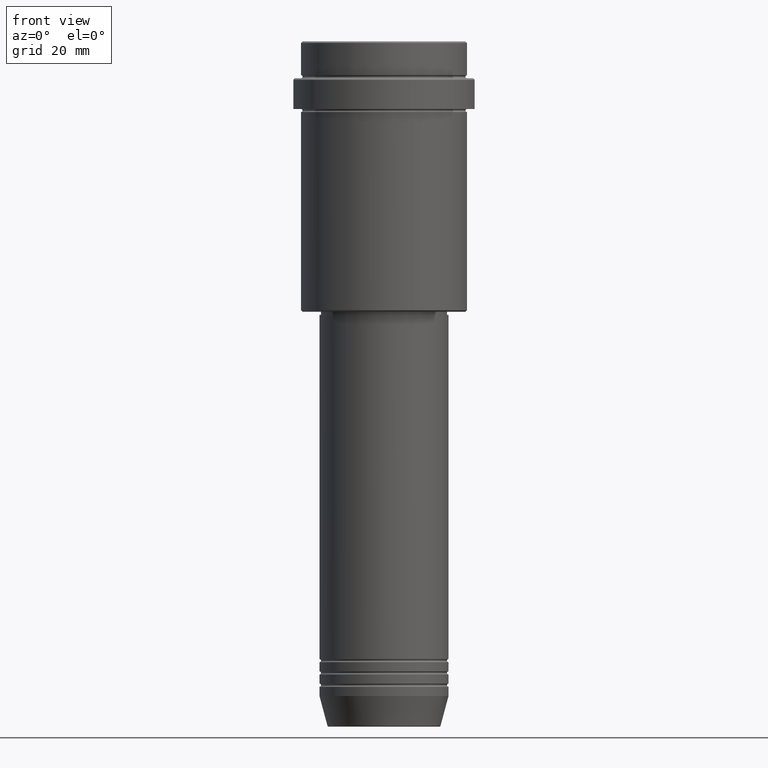
[diagram: clean part render]
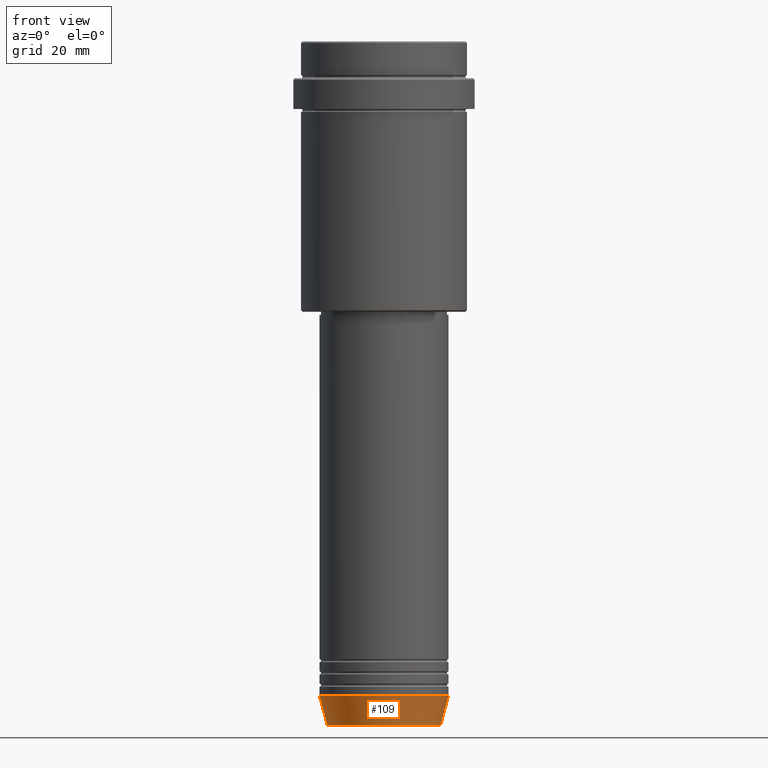
[diagram: same view with one face highlighted and labeled with its STEP entity id]
A machine part, front view. The second image highlights one B-rep face of the part: STEP entity #109.
In plain terms, the highlighted conical surface has half-angle 15 deg.
Its self-contained STEP definition (entity closure, byte-faithful):
#22 = EDGE_CURVE ( 'NONE', #302, #444, #1338, .T. ) ;
#48 = CARTESIAN_POINT ( 'NONE',  ( 0.000000000000000000, 0.000000000000000000, -213.0000000000000284 ) ) ;
#105 = ORIENTED_EDGE ( 'NONE', *, *, #22, .F. ) ;
#108 = ORIENTED_EDGE ( 'NONE', *, *, #338, .T. ) ;
#109 = ADVANCED_FACE ( 'NONE', ( #1351 ), #1205, .T. ) ;
#147 = DIRECTION ( 'NONE',  ( -0.000000000000000000, -0.000000000000000000, 1.000000000000000000 ) ) ;
#176 = CIRCLE ( 'NONE', #1340, 18.41980749484383040 ) ;
#205 = VERTEX_POINT ( 'NONE', #281 ) ;
#249 = DIRECTION ( 'NONE',  ( 0.2588190451025211836, 0.000000000000000000, 0.9659258262890680902 ) ) ;
#252 = CARTESIAN_POINT ( 'NONE',  ( 0.000000000000000000, 0.000000000000000000, -222.6294095225512990 ) ) ;
#281 = CARTESIAN_POINT ( 'NONE',  ( -18.41980749484383040, 2.413767053578267064E-15, -222.6294095225512990 ) ) ;
#294 = ORIENTED_EDGE ( 'NONE', *, *, #1155, .F. ) ;
#302 = VERTEX_POINT ( 'NONE', #359 ) ;
#316 = CARTESIAN_POINT ( 'NONE',  ( 21.00000000000000000, 0.000000000000000000, -213.0000000000000284 ) ) ;
#338 = EDGE_CURVE ( 'NONE', #205, #1068, #176, .T. ) ;
#359 = CARTESIAN_POINT ( 'NONE',  ( -21.00000000000000000, 2.571758278209441661E-15, -213.0000000000000284 ) ) ;
#419 = AXIS2_PLACEMENT_3D ( 'NONE', #48, #829, #1374 ) ;
#444 = VERTEX_POINT ( 'NONE', #316 ) ;
#651 = DIRECTION ( 'NONE',  ( -0.000000000000000000, -0.000000000000000000, 1.000000000000000000 ) ) ;
#662 = VECTOR ( 'NONE', #1078, 1000.000000000000114 ) ;
#765 = DIRECTION ( 'NONE',  ( 1.000000000000000000, 0.000000000000000000, 0.000000000000000000 ) ) ;
#790 = CARTESIAN_POINT ( 'NONE',  ( 21.00000000000000000, 0.000000000000000000, -213.0000000000000284 ) ) ;
#829 = DIRECTION ( 'NONE',  ( -0.000000000000000000, -0.000000000000000000, 1.000000000000000000 ) ) ;
#841 = DIRECTION ( 'NONE',  ( 1.000000000000000000, 0.000000000000000000, 0.000000000000000000 ) ) ;
#890 = LINE ( 'NONE', #1090, #662 ) ;
#896 = EDGE_LOOP ( 'NONE', ( #294, #108, #1357, #105 ) ) ;
#908 = LINE ( 'NONE', #790, #1415 ) ;
#934 = AXIS2_PLACEMENT_3D ( 'NONE', #1179, #651, #765 ) ;
#946 = CARTESIAN_POINT ( 'NONE',  ( 18.41980749484383040, 0.000000000000000000, -222.6294095225512990 ) ) ;
#1068 = VERTEX_POINT ( 'NONE', #946 ) ;
#1078 = DIRECTION ( 'NONE',  ( -0.2588190451025211836, 3.169619151431770488E-17, 0.9659258262890680902 ) ) ;
#1090 = CARTESIAN_POINT ( 'NONE',  ( -21.00000000000000000, 2.571758278209441661E-15, -213.0000000000000284 ) ) ;
#1155 = EDGE_CURVE ( 'NONE', #205, #302, #890, .T. ) ;
#1179 = CARTESIAN_POINT ( 'NONE',  ( 0.000000000000000000, 0.000000000000000000, -213.0000000000000284 ) ) ;
#1205 = CONICAL_SURFACE ( 'NONE', #419, 21.00000000000000000, 0.2617993877991499074 ) ;
#1291 = EDGE_CURVE ( 'NONE', #1068, #444, #908, .T. ) ;
#1338 = CIRCLE ( 'NONE', #934, 21.00000000000000000 ) ;
#1340 = AXIS2_PLACEMENT_3D ( 'NONE', #252, #147, #841 ) ;
#1351 = FACE_OUTER_BOUND ( 'NONE', #896, .T. ) ;
#1357 = ORIENTED_EDGE ( 'NONE', *, *, #1291, .T. ) ;
#1374 = DIRECTION ( 'NONE',  ( 1.000000000000000000, 0.000000000000000000, 0.000000000000000000 ) ) ;
#1415 = VECTOR ( 'NONE', #249, 1000.000000000000114 ) ;